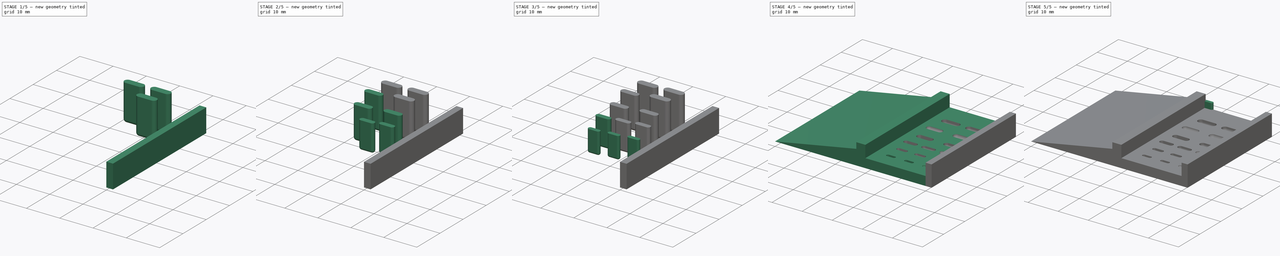
[diagram: build sequence overview — one tinted view per stage of 5, left to right]
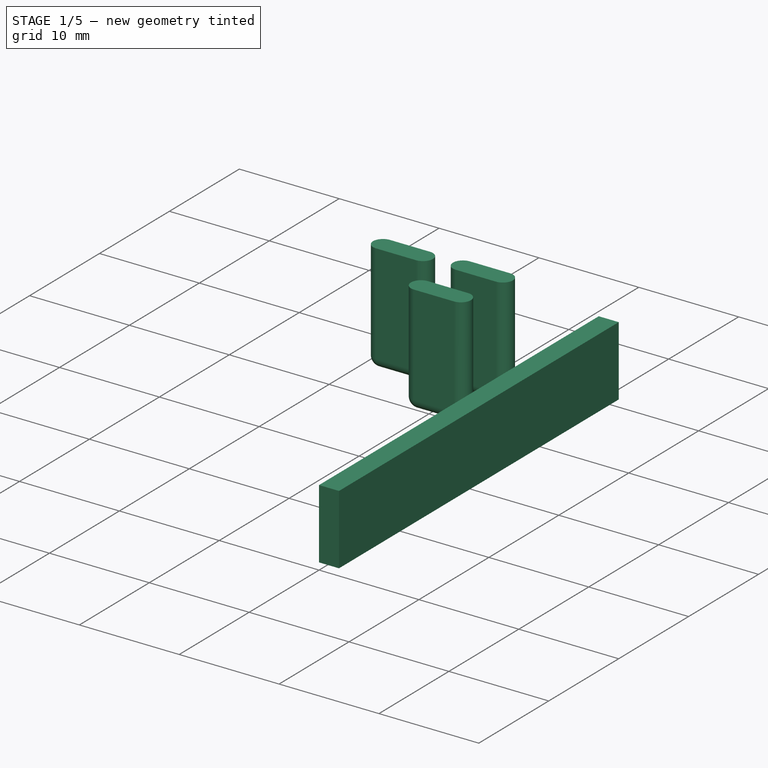
[diagram: stage 1 of 5 — iso view after this stage's code; geometry added in this stage tinted green]
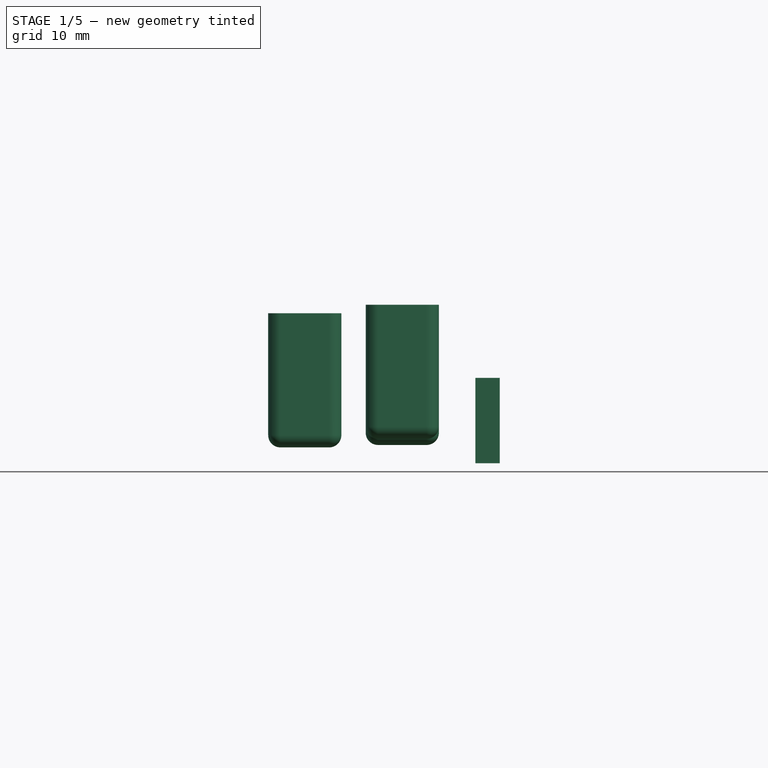
[diagram: stage 1 of 5 — front view after this stage's code; geometry added in this stage tinted green]
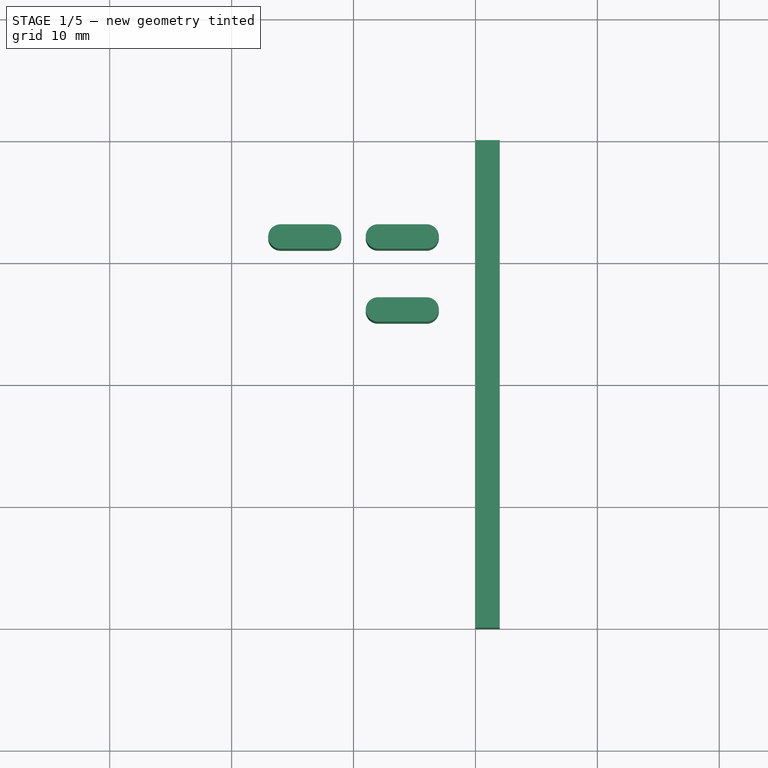
[diagram: stage 1 of 5 — top view after this stage's code; geometry added in this stage tinted green]
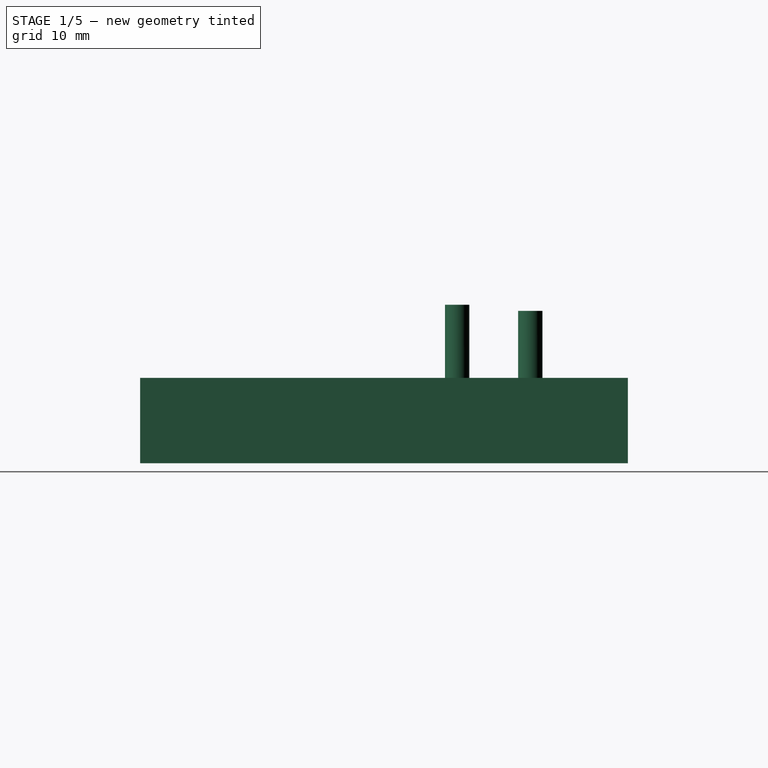
[diagram: stage 1 of 5 — right view after this stage's code; geometry added in this stage tinted green]
FCSTD DOCUMENT  (FreeCAD 0.19R24344 (Git))
Label: Sarcophagus_platform_15
Comment: Sarcophagi in different sizes for different animals. After mounting this directly on a cooling plate (eg a peltier element) it can be used to sort flies on the flat surface and then move them to the s... (+121 chars)
License: Creative Commons Attribution-NonCommercial-ShareAlike
LicenseURL: http://creativecommons.org/licenses/by-nc-sa/4.0/
objects: Part::FeaturePython×12, Sketcher::SketchObject×3, PartDesign::Pad×3, PartDesign::Body×3, Part::Feature×3, Part::Sphere×2, Part::MultiFuse×2, PartDesign::ShapeBinder×2, PartDesign::CoordinateSystem×2, App::Part×2, App::DocumentObjectGroup×2, Part::Cylinder×1, PartDesign::FeatureBase×1, Part::Cut×1, App::FeaturePython×1, App::Link×1
note: 38 computed .brp shape members not serialized (recipe doc carries the construction recipe); baked Part::Feature solids carry a one-line shape summary decoded from their .brp
EXTERNAL_REF file=../../Miscellaneous/Scale-Bar/Scale-Bar.FCStd obj=LCS_0
EXTERNAL_REF file=../../Miscellaneous/Scale-Bar/Scale-Bar.FCStd obj=Scalebar

FEATURE [Part::FeaturePython] Clone009  label="Body2.001"  # Draft clone (typed FeaturePython)
  AttacherType = Attacher::AttachEngine3D
  Fuse = false
  Objects = -> [Body001001]
  Placement = pos=(4,-8,2.3) rot=(0,0,1;0rad)
  Scale = (2,2,2)
FEATURE [Part::FeaturePython] Clone010  label="Body2.002"  # Draft clone (typed FeaturePython)
  AttacherType = Attacher::AttachEngine3D
  Fuse = false
  Objects = -> [Body001002]
  Placement = pos=(12,-8,2.5) rot=(0,0,1;0rad)
  Scale = (2,2,2)
FEATURE [Part::FeaturePython] Clone011  label="Body2.003"  # Draft clone (typed FeaturePython)
  AttacherType = Attacher::AttachEngine3D
  Fuse = false
  Objects = -> [Body001003]
  Placement = pos=(12,-14,3) rot=(0,0,1;0rad)
  Scale = (2,2,2)
FEATURE [PartDesign::ShapeBinder] CopyCut
  TraceSupport = false
FEATURE [PartDesign::Body] Body001
  BaseFeature = -> Fusion
  Group = -> [BaseFeature,Sketch002,Pad001,CopyCut]
  Origin = -> Origin001
  Tip = -> Pad001
FEATURE [PartDesign::ShapeBinder] CopyCopyCut
  TraceSupport = false
FEATURE [Sketcher::SketchObject] Sketch003
  FullyConstrained = true
  MapMode = 5
  Placement = pos=(20,0,0) rot=(0.57735,0.57735,0.57735;2.0944rad)
  Support = -> [CopyCopyCut]
  sketch-geometry (4):
    g0: LineSegment StartX=0 StartY=0 StartZ=0 EndX=-40 EndY=0 EndZ=0
    g1: LineSegment StartX=-40 StartY=0 StartZ=0 EndX=-40 EndY=7 EndZ=0
    g2: LineSegment StartX=-40 StartY=7 StartZ=0 EndX=0 EndY=7 EndZ=0
    g3: LineSegment StartX=0 StartY=7 StartZ=0 EndX=0 EndY=0 EndZ=0
  constraints (11):
    c: Coincident(g0,g1)
    c: Coincident(g1,g2)
    c: Coincident(g2,g3)
    c: Coincident(g3,g0)
    c: Horizontal(g0)
    c: Horizontal(g2)
    c: Vertical(g1)
    c: Vertical(g3)
    c: Coincident(g0,g-1)
    c: Distance(g0) = 40
    c: Distance(g1) = 7
FEATURE [PartDesign::Pad] Pad002
  Direction = (1,1,1)
  Length = 2
  Length2 = 100
  Profile = -> Sketch003
  Type = 0
FEATURE [PartDesign::Body] Body001004
  Group = -> [CopyCopyCut,Sketch003,Pad002]
  Origin = -> Origin002
  Tip = -> Pad002
FEATURE [PartDesign::CoordinateSystem] LCS_0
  AttacherType = Attacher::AttachEngine3D
  MapMode = 2
  Support = -> [X_Axis003]
FEATURE [App::Part] Tether_Platform
  Group = -> [LCS_0,Body001004,Body001002,Clone011,Clone009,Body001001,Clone005,Clone008,Clone,Clone002,Clone001,Body001003,Body,Clone004,Clone007,Clone006,Fusion001,Clone003,Clone010,Cut,Fusion,Cylinder,Sphere,Sphere001,Body001]
  Origin = -> Origin003
FEATURE [App::DocumentObjectGroup] Parts
  Group = -> [Tether_Platform]
FEATURE [PartDesign::CoordinateSystem] LCS_Origin
  AttacherType = Attacher::AttachEngine3D
  MapMode = 2
  Support = -> [X_Axis004]
FEATURE [App::DocumentObjectGroup] Constraints
FEATURE [App::FeaturePython] Variables  # WARN: FeaturePython — macro-defined, semantics opaque (R4)
FEATURE [App::Link] Scale_Bar_Scalebar
  AssemblyType = Asm4EE
  AttachedBy = #LCS_0
  AttachedTo = Parent Assembly#LCS_Origin
  AttachmentOffset = pos=(-35,-1,0) rot=(0.57735,0.57735,0.57735;2.0944rad)
  LinkPlacement = pos=(-35,-1,0) rot=(0.57735,0.57735,0.57735;2.0944rad)
  LinkedObject = -> <external ../../Miscellaneous/Scale-Bar/Scale-Bar.FCStd>#Scalebar
  Placement = pos=(-35,-1,0) rot=(0.57735,0.57735,0.57735;2.0944rad)
  expr: Placement = LCS_Origin.Placement * AttachmentOffset * Scale_Bar#LCS_0.Placement ^ -1
FEATURE [App::Part] Model
  Configuration = 0
  Group = -> [LCS_Origin,Constraints,Variables,Scale_Bar_Scalebar]
  Origin = -> Origin004
  Type = Assembly4 Model

RESOLVED EXTERNAL PARTS (link-assembly join: the EXTERNAL_REF files above that resolve inside this repo's crawl, each included once):
---- part ../../Miscellaneous/Scale-Bar/Scale-Bar.FCStd = doc fcstd_313a3d742b27 ----
FCSTD DOCUMENT  (FreeCAD 0.19R24344 (Git))
Label: Scale Bar
License: Creative Commons Attribution-NonCommercial-ShareAlike
LicenseURL: http://creativecommons.org/licenses/by-nc-sa/4.0/
objects: Part::Box×15, Part::Part2DObjectPython×2, PartDesign::CoordinateSystem×1, App::Part×1
note: 18 computed .brp shape members not serialized (recipe doc carries the construction recipe); baked Part::Feature solids carry a one-line shape summary decoded from their .brp

FEATURE [Part::Box] Box  label="Cube"
  AttacherType = Attacher::AttachEngine3D
  Height = 1
  Length = 10
  Placement = pos=(-10,0,0) rot=(0,0,1;0rad)
  Width = 1
FEATURE [Part::Box] Box001  label="Cube001"
  AttacherType = Attacher::AttachEngine3D
  Height = 1
  Length = 1
  Placement = pos=(-16,0,0) rot=(0,0,1;0rad)
  Width = 1
FEATURE [Part::Box] Box002  label="Cube002"
  AttacherType = Attacher::AttachEngine3D
  Height = 1
  Length = 1
  Placement = pos=(-18,0,0) rot=(0,0,1;0rad)
  Width = 1
FEATURE [Part::Box] Box003  label="Cube003"
  AttacherType = Attacher::AttachEngine3D
  Height = 1
  Length = 1
  Placement = pos=(-20,0,0) rot=(0,0,1;0rad)
  Width = 1
FEATURE [PartDesign::CoordinateSystem] LCS_0
  AttacherType = Attacher::AttachEngine3D
  MapMode = 2
  Support = -> [X_Axis]
FEATURE [Part::Box] Box004  label="Cube004"
  AttacherType = Attacher::AttachEngine3D
  Height = 1
  Length = 10
  Placement = pos=(-1,10,0) rot=(0,0,-1;1.5708rad)
  Width = 1
FEATURE [Part::Box] Box005  label="Cube005"
  AttacherType = Attacher::AttachEngine3D
  Height = 1
  Length = 1
  Placement = pos=(-1,16,0) rot=(0,0,-1;1.5708rad)
  Width = 1
FEATURE [Part::Box] Box006  label="Cube006"
  AttacherType = Attacher::AttachEngine3D
  Height = 1
  Length = 1
  Placement = pos=(-1,18,0) rot=(0,0,-1;1.5708rad)
  Width = 1
FEATURE [Part::Box] Box007  label="Cube007"
  AttacherType = Attacher::AttachEngine3D
  Height = 1
  Length = 1
  Placement = pos=(-1,20,0) rot=(0,0,-1;1.5708rad)
  Width = 1
FEATURE [Part::Box] Box010  label="Cube010"
  AttacherType = Attacher::AttachEngine3D
  Height = 1
  Length = 1
  Placement = pos=(-1,0,18) rot=(0,1,0;1.5708rad)
  Width = 1
FEATURE [Part::Box] Box008  label="Cube008"
  AttacherType = Attacher::AttachEngine3D
  Height = 1
  Length = 10
  Placement = pos=(-1,0,10) rot=(0,1,0;1.5708rad)
  Width = 1
FEATURE [Part::Box] Box009  label="Cube009"
  AttacherType = Attacher::AttachEngine3D
  Height = 1
  Length = 1
  Placement = pos=(-1,0,16) rot=(0,1,0;1.5708rad)
  Width = 1
FEATURE [Part::Box] Box011  label="Cube011"
  AttacherType = Attacher::AttachEngine3D
  Height = 1
  Length = 1
  Placement = pos=(-1,0,20) rot=(0,1,0;1.5708rad)
  Width = 1
FEATURE [Part::Box] Box012  label="Cube012"
  AttacherType = Attacher::AttachEngine3D
  Height = 19.9
  Length = 0.9
  Placement = pos=(-0.95,0.05,0) rot=(0,0,1;0rad)
  Width = 0.9
FEATURE [Part::Box] Box013  label="Cube013"
  AttacherType = Attacher::AttachEngine3D
  Height = 0.9
  Length = 19.9
  Placement = pos=(-19.95,0.05,0.05) rot=(0,0,1;0rad)
  Width = 0.9
FEATURE [Part::Box] Box014  label="Cube014"
  AttacherType = Attacher::AttachEngine3D
  Height = 0.9
  Length = 0.9
  Placement = pos=(-0.95,0.05,0.05) rot=(0,0,1;0rad)
  Width = 19.9
FEATURE [Part::Part2DObjectPython] ShapeString  label="X-Label"  # Draft 2D object (typed FeaturePython)
  FontFile = <userpath>/prj/2019_Janelia_Component-Design/Extra/Scale Bar/DejaVuSans.ttf
  Placement = pos=(-18.94,2,0) rot=(0,0,1;0rad)
  Size = 4
  String = 20mm
  Tracking = 0
FEATURE [Part::Part2DObjectPython] ShapeString001  label="Y-Label"  # Draft 2D object (typed FeaturePython)
  FontFile = <userpath>/prj/2019_Janelia_Component-Design/Extra/Scale Bar/DejaVuSans.ttf
  Placement = pos=(0,2,2) rot=(0,1,0;36.1283rad)
  Size = 4
  String = 20mm
  Tracking = 0
FEATURE [App::Part] Scalebar
  Group = -> [LCS_0,Box,Box001,Box002,Box003,Box004,Box005,Box006,Box007,Box008,Box009,Box010,Box011,Box012,Box013,Box014,ShapeString,ShapeString001]
  Origin = -> Origin
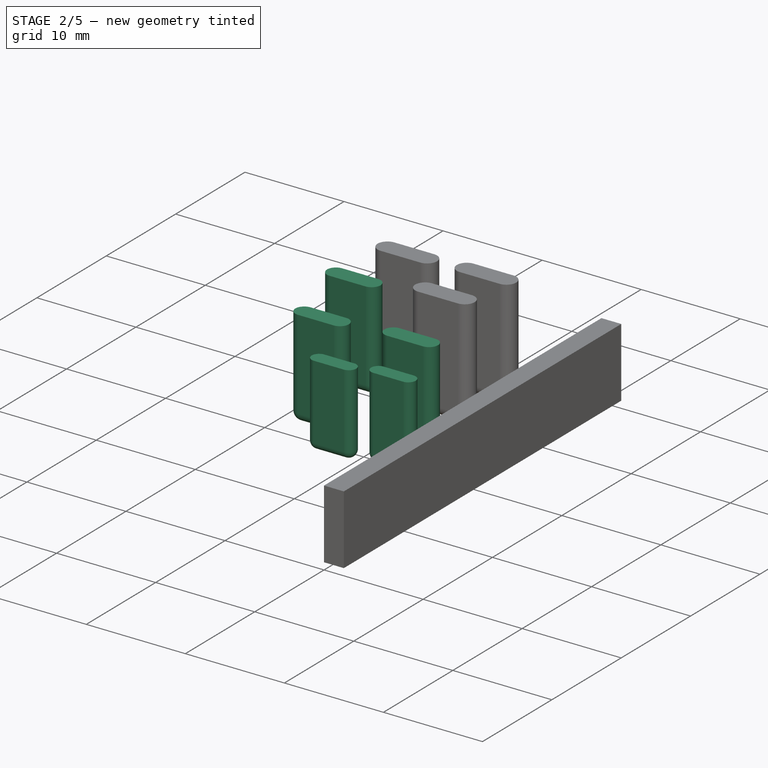
[diagram: stage 2 of 5 — iso view after this stage's code; geometry added in this stage tinted green]
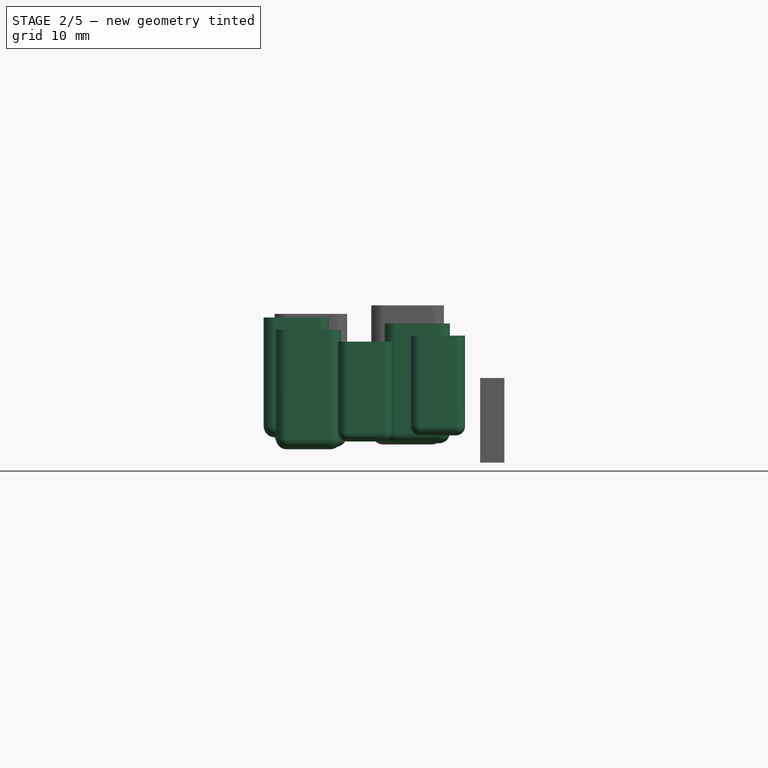
[diagram: stage 2 of 5 — front view after this stage's code; geometry added in this stage tinted green]
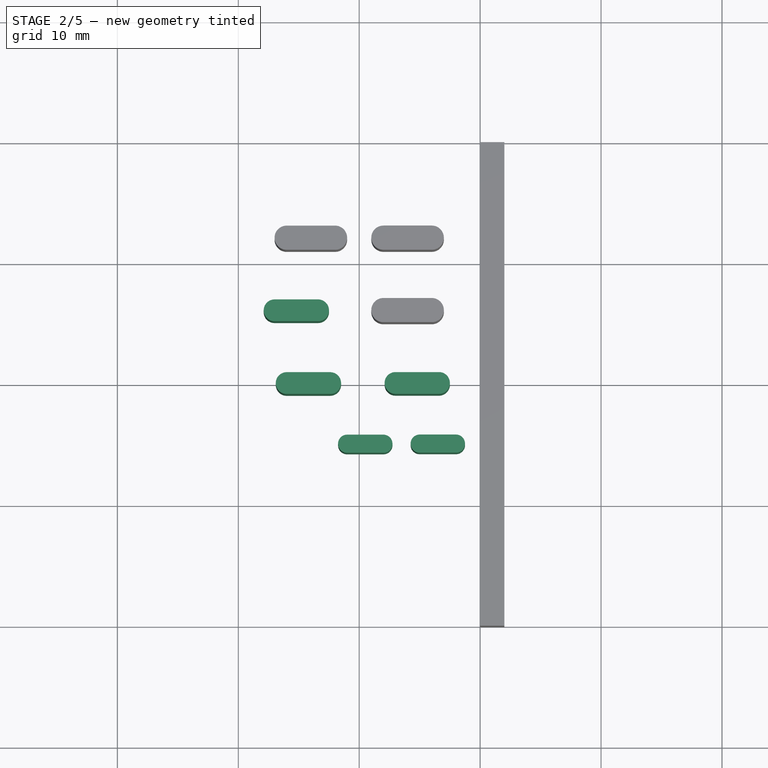
[diagram: stage 2 of 5 — top view after this stage's code; geometry added in this stage tinted green]
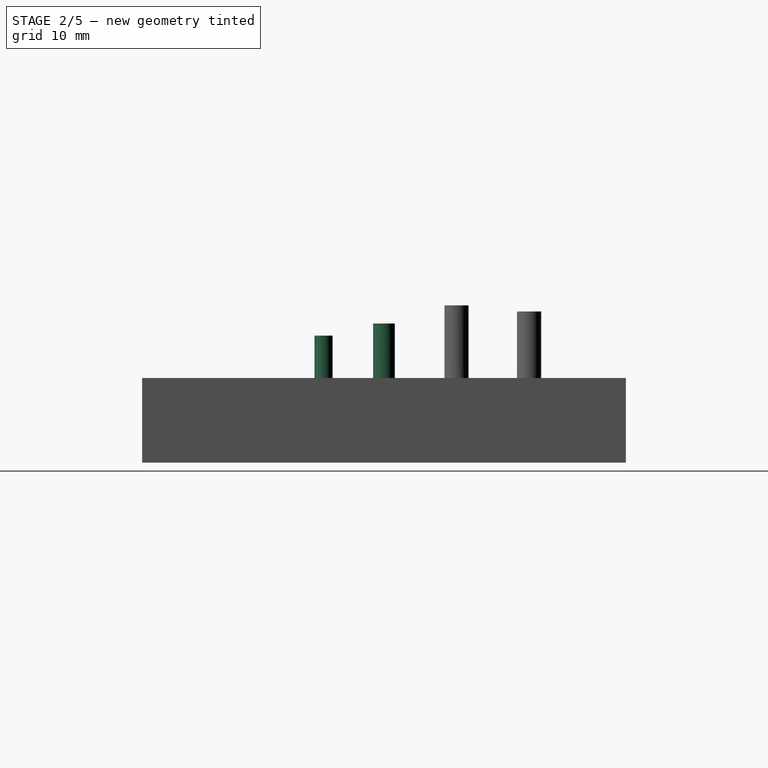
[diagram: stage 2 of 5 — right view after this stage's code; geometry added in this stage tinted green]
FEATURE [Part::FeaturePython] Clone004  label="Body1.502"  # Draft clone (typed FeaturePython)
  AttacherType = Attacher::AttachEngine3D
  Fuse = false
  Objects = -> [Body001002]
  Placement = pos=(9,-25,2.5) rot=(0,0,1;0rad)
  Scale = (1.5,1.5,1.5)
FEATURE [Part::FeaturePython] Clone005  label="Body1.503"  # Draft clone (typed FeaturePython)
  AttacherType = Attacher::AttachEngine3D
  Fuse = false
  Objects = -> [Body001003]
  Placement = pos=(15,-25,3) rot=(0,0,1;0rad)
  Scale = (1.5,1.5,1.5)
FEATURE [Part::FeaturePython] Clone006  label="Body1.801"  # Draft clone (typed FeaturePython)
  AttacherType = Attacher::AttachEngine3D
  Fuse = false
  Objects = -> [Body001001]
  Placement = pos=(4,-20,2) rot=(0,0,1;0rad)
  Scale = (1.8,1.8,1.8)
FEATURE [Part::FeaturePython] Clone007  label="Body1.802"  # Draft clone (typed FeaturePython)
  AttacherType = Attacher::AttachEngine3D
  Fuse = false
  Objects = -> [Body001002]
  Placement = pos=(13,-20,2.5) rot=(0,0,1;0rad)
  Scale = (1.8,1.8,1.8)
FEATURE [Part::FeaturePython] Clone008  label="Body1.803"  # Draft clone (typed FeaturePython)
  AttacherType = Attacher::AttachEngine3D
  Fuse = false
  Objects = -> [Body001003]
  Placement = pos=(3,-14,3) rot=(0,0,1;0rad)
  Scale = (1.8,1.8,1.8)
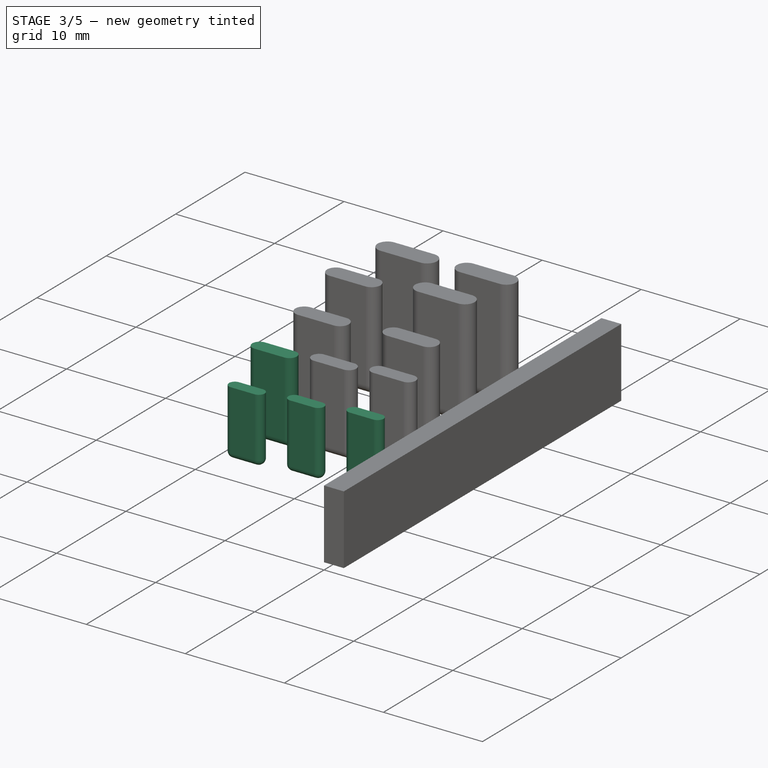
[diagram: stage 3 of 5 — iso view after this stage's code; geometry added in this stage tinted green]
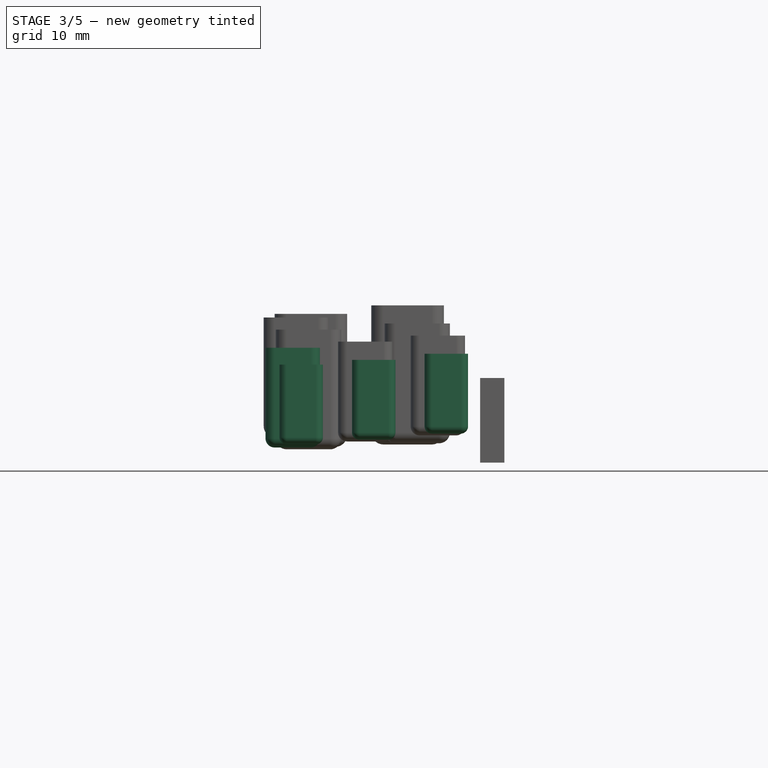
[diagram: stage 3 of 5 — front view after this stage's code; geometry added in this stage tinted green]
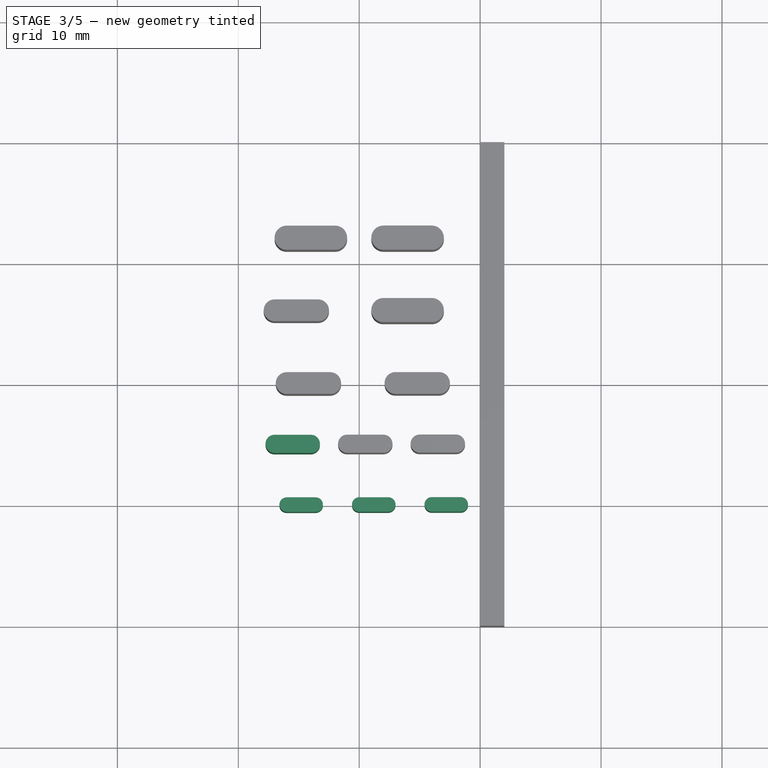
[diagram: stage 3 of 5 — top view after this stage's code; geometry added in this stage tinted green]
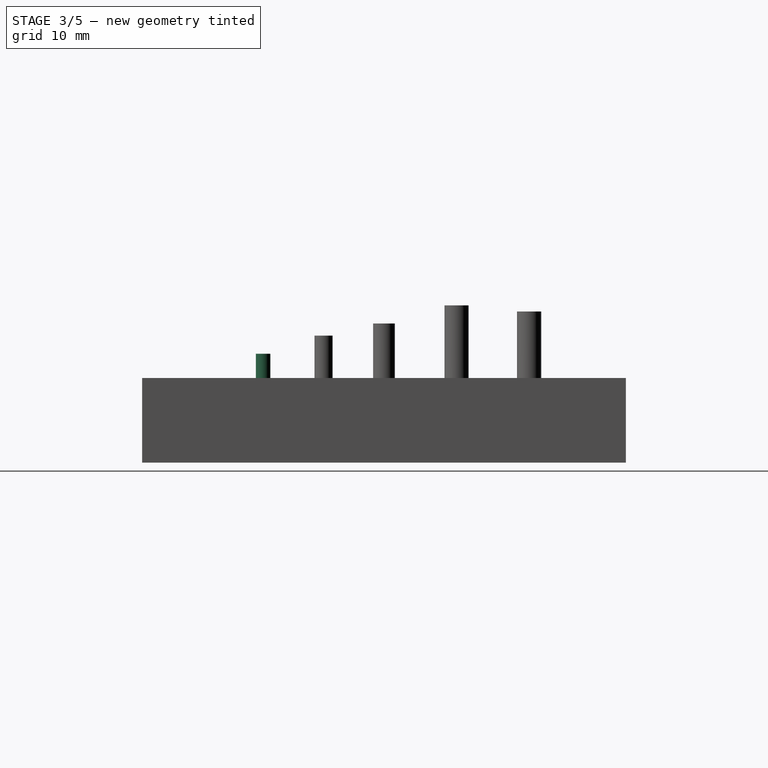
[diagram: stage 3 of 5 — right view after this stage's code; geometry added in this stage tinted green]
FEATURE [Part::Feature] Body001001  label="Body1.001"
  Placement = pos=(4,-35,2.1) rot=(0,0,1;0rad)
  shape: bbox 3 x 1 x 5.5 mm, 10 faces (baked)
FEATURE [Part::Feature] Body001002  label="Body1.002"
  Placement = pos=(10,-35,2.4) rot=(0,0,1;0rad)
  shape: bbox 3 x 1 x 5.5 mm, 10 faces (baked)
FEATURE [Part::Feature] Body001003  label="Body1.003"
  Placement = pos=(16,-35,3) rot=(0,0,1;0rad)
  shape: bbox 3 x 1 x 5.5 mm, 10 faces (baked)
FEATURE [Part::FeaturePython] Clone  label="Body1.201"  # Draft clone (typed FeaturePython)
  AttacherType = Attacher::AttachEngine3D
  Fuse = false
  Objects = -> [Body001001]
  Placement = pos=(4,-30,2.1) rot=(0,0,1;0rad)
  Scale = (1.2,1.2,1.2)
FEATURE [Part::FeaturePython] Clone001  label="Body1.202"  # Draft clone (typed FeaturePython)
  AttacherType = Attacher::AttachEngine3D
  Fuse = false
  Objects = -> [Body001002]
  Placement = pos=(10,-30,2.5) rot=(0,0,1;0rad)
  Scale = (1.2,1.2,1.2)
FEATURE [Part::FeaturePython] Clone002  label="Body1.203"  # Draft clone (typed FeaturePython)
  AttacherType = Attacher::AttachEngine3D
  Fuse = false
  Objects = -> [Body001003]
  Placement = pos=(16,-30,3) rot=(0,0,1;0rad)
  Scale = (1.2,1.2,1.2)
FEATURE [Part::FeaturePython] Clone003  label="Body1.501"  # Draft clone (typed FeaturePython)
  AttacherType = Attacher::AttachEngine3D
  Fuse = false
  Objects = -> [Body001001]
  Placement = pos=(3,-25,2) rot=(0,0,1;0rad)
  Scale = (1.5,1.5,1.5)
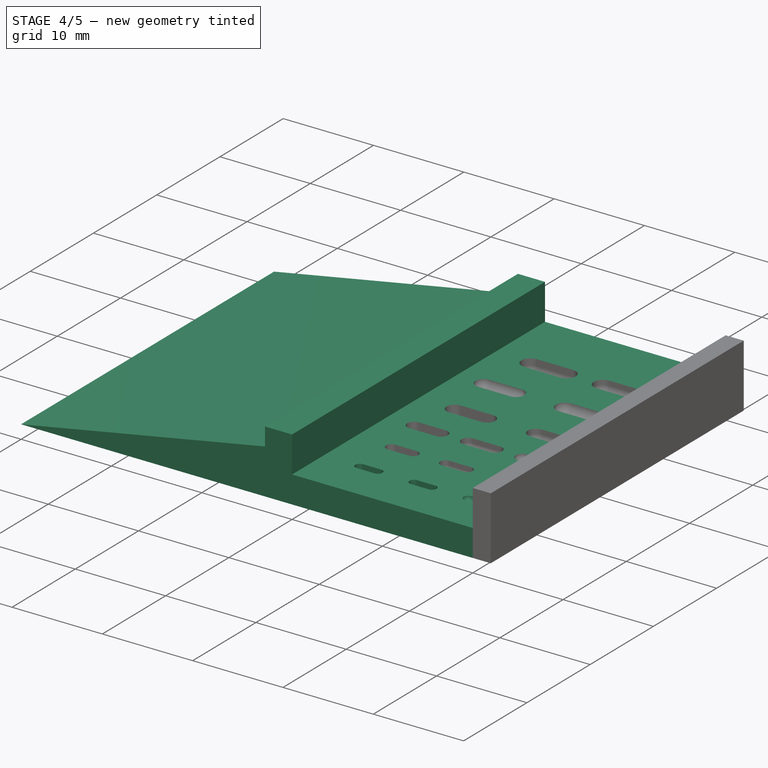
[diagram: stage 4 of 5 — iso view after this stage's code; geometry added in this stage tinted green]
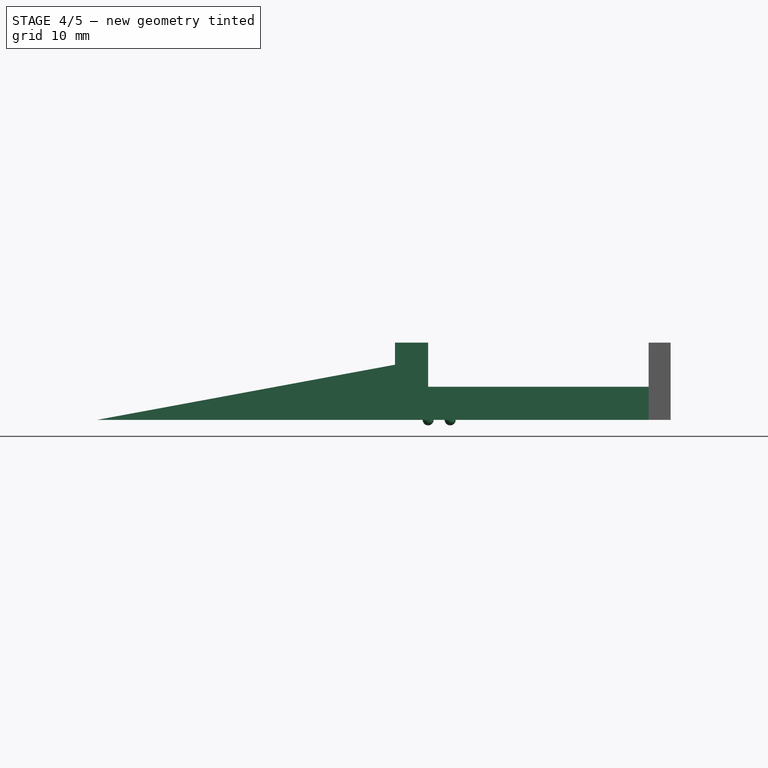
[diagram: stage 4 of 5 — front view after this stage's code; geometry added in this stage tinted green]
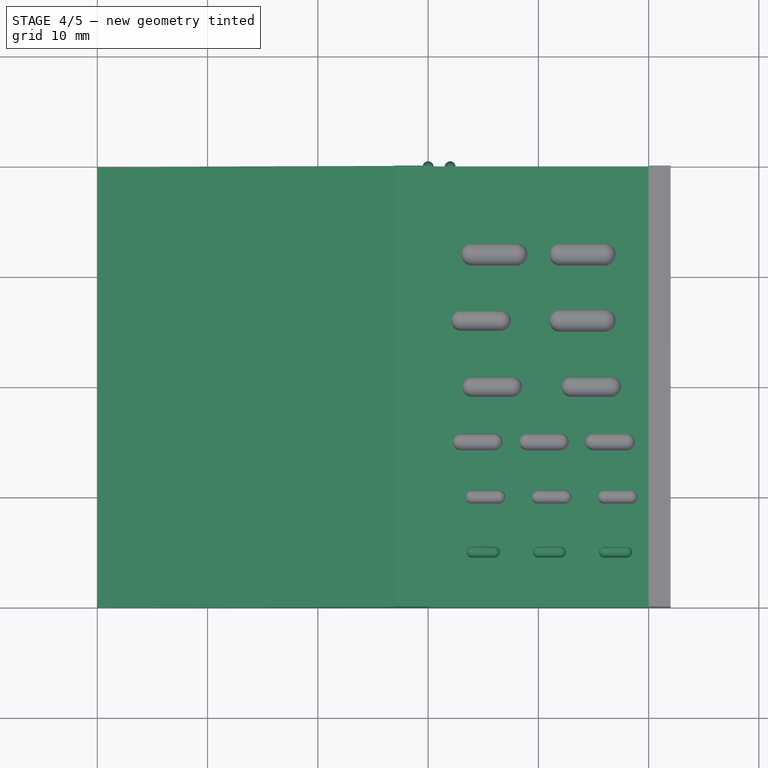
[diagram: stage 4 of 5 — top view after this stage's code; geometry added in this stage tinted green]
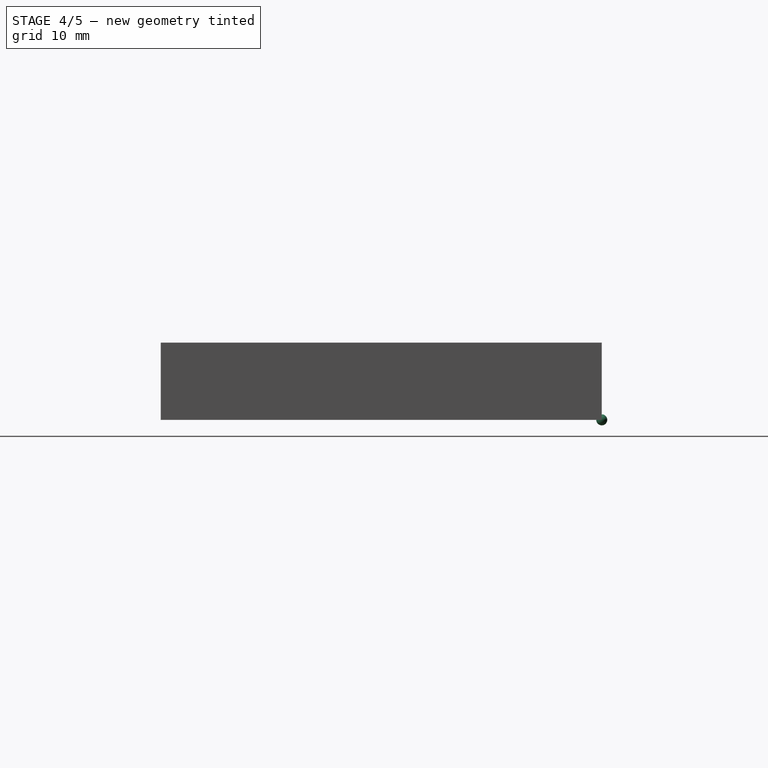
[diagram: stage 4 of 5 — right view after this stage's code; geometry added in this stage tinted green]
FEATURE [Sketcher::SketchObject] Sketch
  FullyConstrained = true
  MapMode = 5
  Placement = pos=(0,0,0) rot=(1,0,0;1.5708rad)
  Support = -> [XZ_Plane]
  sketch-geometry (7):
    g0: LineSegment StartX=20 StartY=0 StartZ=0 EndX=-30 EndY=0 EndZ=0
    g1: LineSegment StartX=-30 StartY=0 StartZ=0 EndX=-3 EndY=5 EndZ=0
    g2: LineSegment StartX=-3 StartY=5 StartZ=0 EndX=-3 EndY=7 EndZ=0
    g3: LineSegment StartX=-3 StartY=7 StartZ=0 EndX=0 EndY=7 EndZ=0
    g4: LineSegment StartX=0 StartY=7 StartZ=0 EndX=0 EndY=3 EndZ=0
    g5: LineSegment StartX=0 StartY=3 StartZ=0 EndX=20 EndY=3 EndZ=0
    g6: LineSegment StartX=20 StartY=3 StartZ=0 EndX=20 EndY=0 EndZ=0
  constraints (21):
    c: PointOnObject(g0,g-1)
    c: Horizontal(g0)
    c: Coincident(g0,g1)
    c: Coincident(g1,g2)
    c: Vertical(g2)
    c: Coincident(g2,g3)
    c: PointOnObject(g3,g-2)
    c: Horizontal(g3)
    c: Coincident(g3,g4)
    c: Vertical(g4)
    c: Coincident(g4,g5)
    c: Horizontal(g5)
    c: Coincident(g5,g6)
    c: Coincident(g6,g0)
    c: Vertical(g6)
    c: Distance(g5) = 20
    c: Distance(g3) = 3
    c: Distance(g4) = 4
    c: Distance(g6) = 3
    c: Distance(g2) = 2
    c: Distance(g0) = 50
FEATURE [PartDesign::Pad] Pad
  Direction = (1,1,1)
  Length = 40
  Length2 = 100
  Placement = pos=(0,0,0) rot=(1,0,0;1.5708rad)
  Profile = -> Sketch
  Type = 0
FEATURE [Part::Sphere] Sphere
  Angle1 = -90
  Angle2 = 90
  Angle3 = 360
  AttacherType = Attacher::AttachEngine3D
  Radius = 0.5
FEATURE [Part::Sphere] Sphere001
  Angle1 = -90
  Angle2 = 90
  Angle3 = 360
  AttacherType = Attacher::AttachEngine3D
  Placement = pos=(2,0,0) rot=(0,0,1;0rad)
  Radius = 0.5
FEATURE [Part::MultiFuse] Fusion001
  Shapes = -> [Body001001,Body001002,Body001003,Clone,Clone001,Clone002,Clone003,Clone004,Clone005,Clone006,Clone007,Clone008,Clone009,Clone010,Clone011]
FEATURE [Part::Cut] Cut
  Base = -> Body
  Tool = -> Fusion001
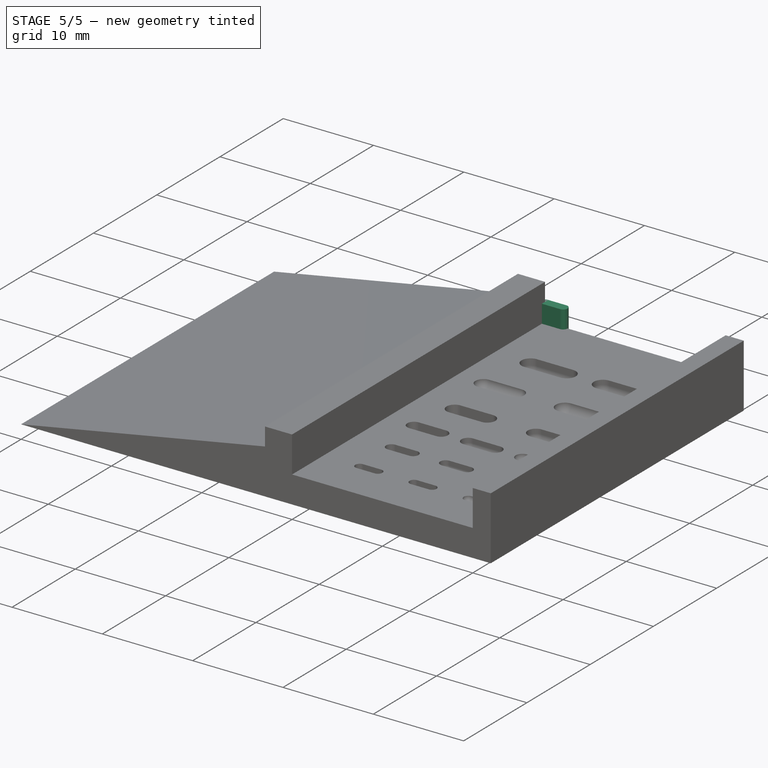
[diagram: stage 5 of 5 — iso view after this stage's code; geometry added in this stage tinted green]
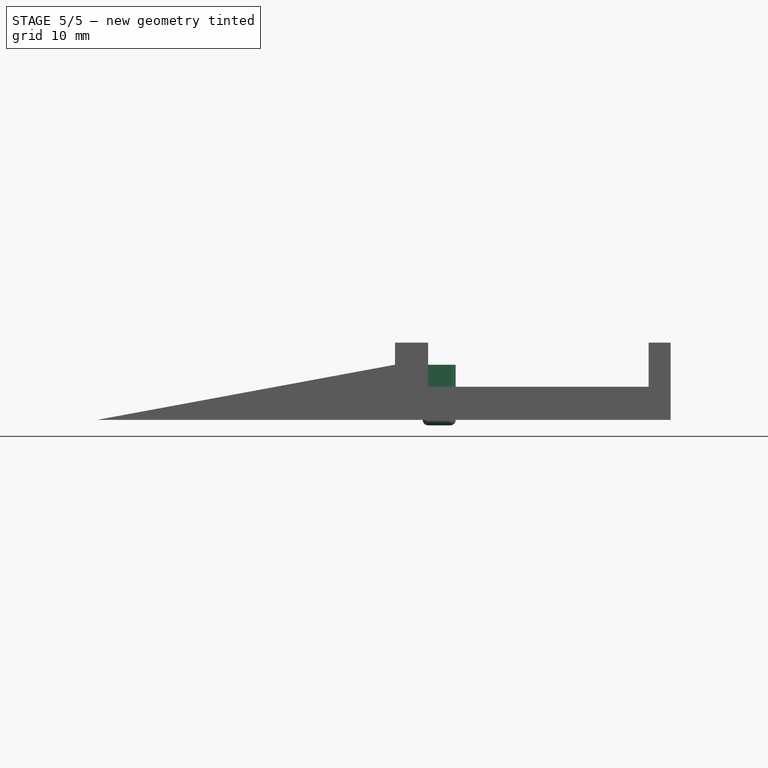
[diagram: stage 5 of 5 — front view after this stage's code; geometry added in this stage tinted green]
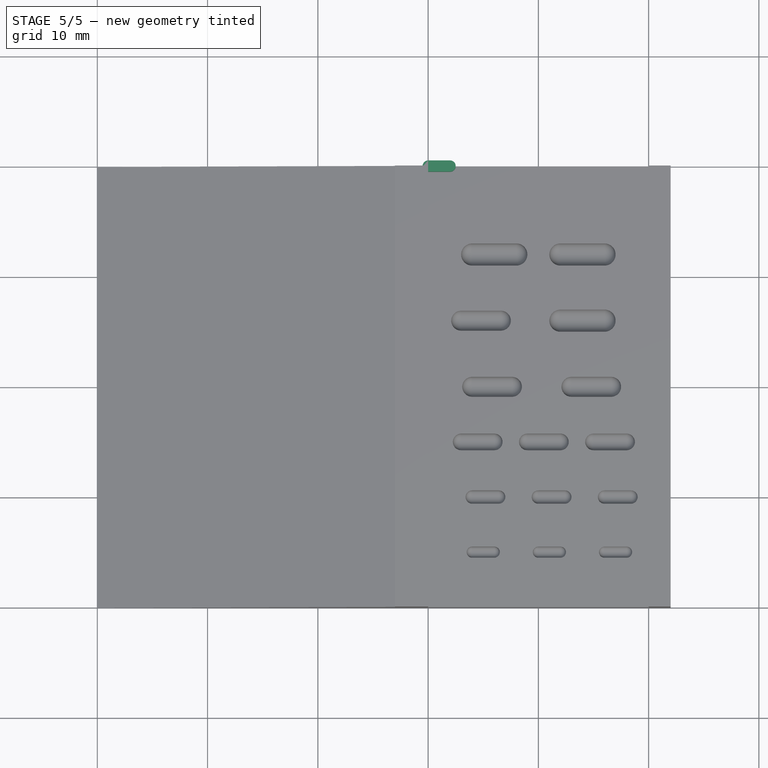
[diagram: stage 5 of 5 — top view after this stage's code; geometry added in this stage tinted green]
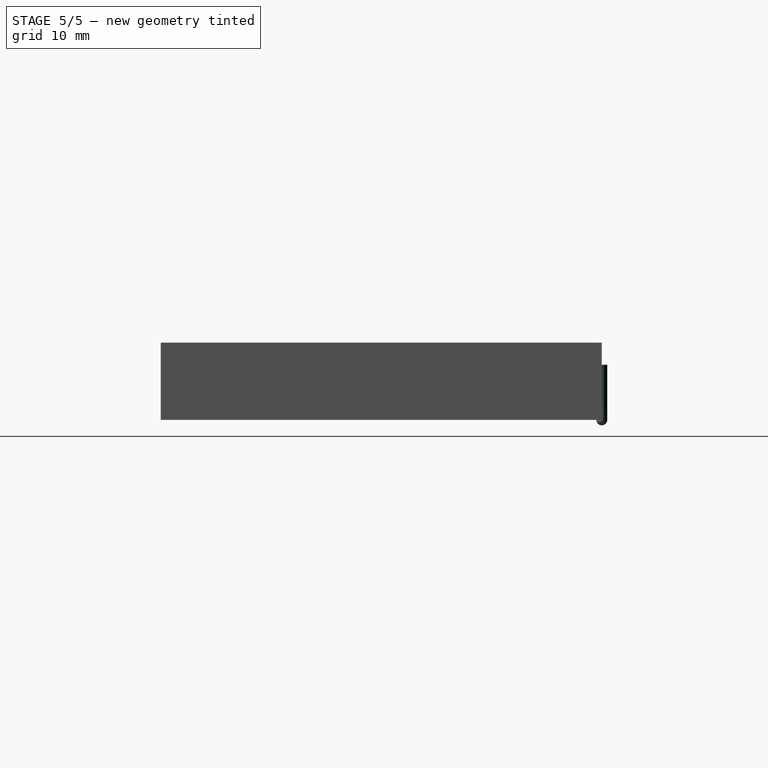
[diagram: stage 5 of 5 — right view after this stage's code; geometry added in this stage tinted green]
FEATURE [PartDesign::Body] Body
  Group = -> [Sketch,Pad]
  Origin = -> Origin
  Tip = -> Pad
FEATURE [Part::Cylinder] Cylinder
  Angle = 360
  AttacherType = Attacher::AttachEngine3D
  Height = 2
  Placement = pos=(0,0,0) rot=(0,1,0;1.5708rad)
  Radius = 0.5
FEATURE [Part::MultiFuse] Fusion
  Shapes = -> [Cylinder,Sphere,Sphere001]
FEATURE [Sketcher::SketchObject] Sketch002
  FullyConstrained = true
  MapMode = 5
  Support = -> [XY_Plane001]
  sketch-geometry (4):
    g0: ArcOfCircle CenterX=0 CenterY=0 CenterZ=0 NormalX=0 NormalY=0 NormalZ=1 AngleXU=0 Radius=0.5 StartAngle=1.5708 EndAngle=4.71239
    g1: ArcOfCircle CenterX=2 CenterY=0 CenterZ=0 NormalX=0 NormalY=0 NormalZ=1 AngleXU=0 Radius=0.5 StartAngle=4.71239 EndAngle=7.85398
    g2: LineSegment StartX=-1e-16 StartY=-0.5 StartZ=0 EndX=2 EndY=-0.5 EndZ=0
    g3: LineSegment StartX=-1e-16 StartY=0.5 StartZ=0 EndX=2 EndY=0.5 EndZ=0
  constraints (9):
    c: Tangent(g0,g3) = 1.5708
    c: Tangent(g0,g2) = -1.5708
    c: Tangent(g2,g1) = -1.5708
    c: Tangent(g3,g1) = 1.5708
    c: Horizontal(g2)
    c: Equal(g0,g1)
    c: Coincident(g0,g-1)
    c: Radius(g0) = 0.5
    c: Distance(g3) = 2
FEATURE [PartDesign::FeatureBase] BaseFeature
  BaseFeature = -> Fusion
FEATURE [PartDesign::Pad] Pad001
  BaseFeature = -> BaseFeature
  Direction = (1,1,1)
  Length = 5
  Length2 = 100
  Profile = -> Sketch002
  Type = 0
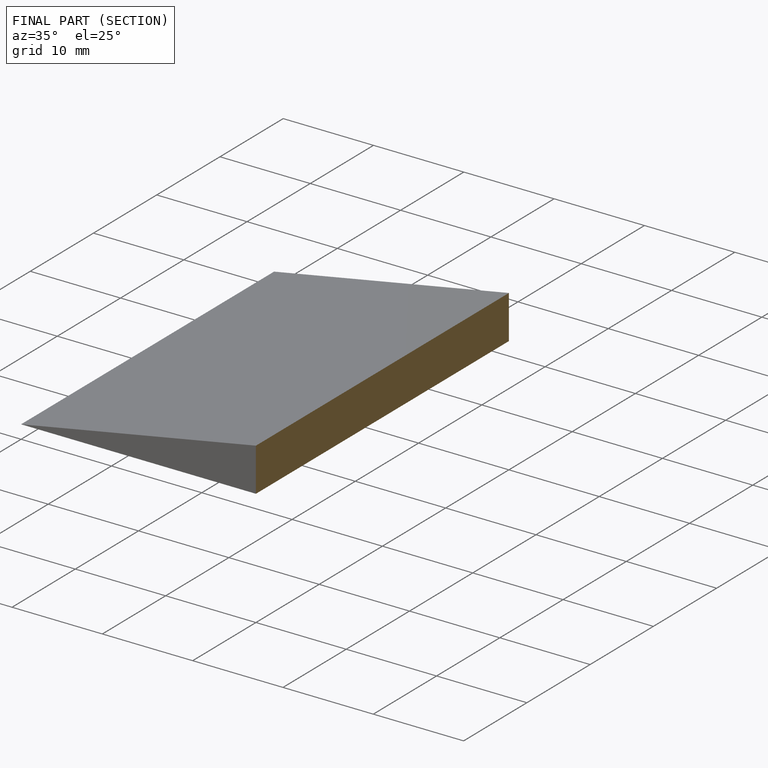
[diagram: finished part — half-section view (interior)]
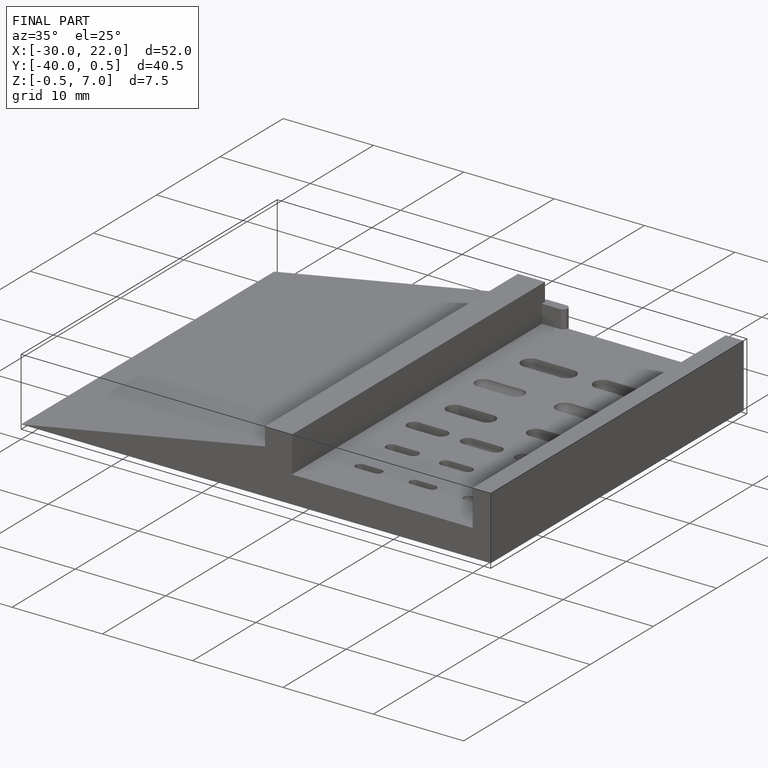
[diagram: finished part — iso view with bounding-box wireframe]
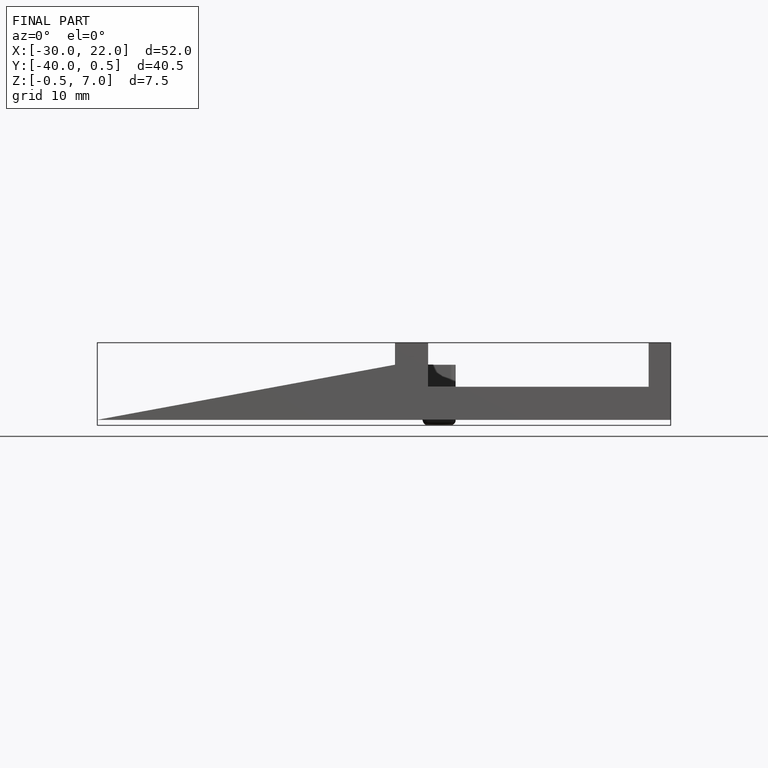
[diagram: finished part — front view with bounding-box wireframe]
